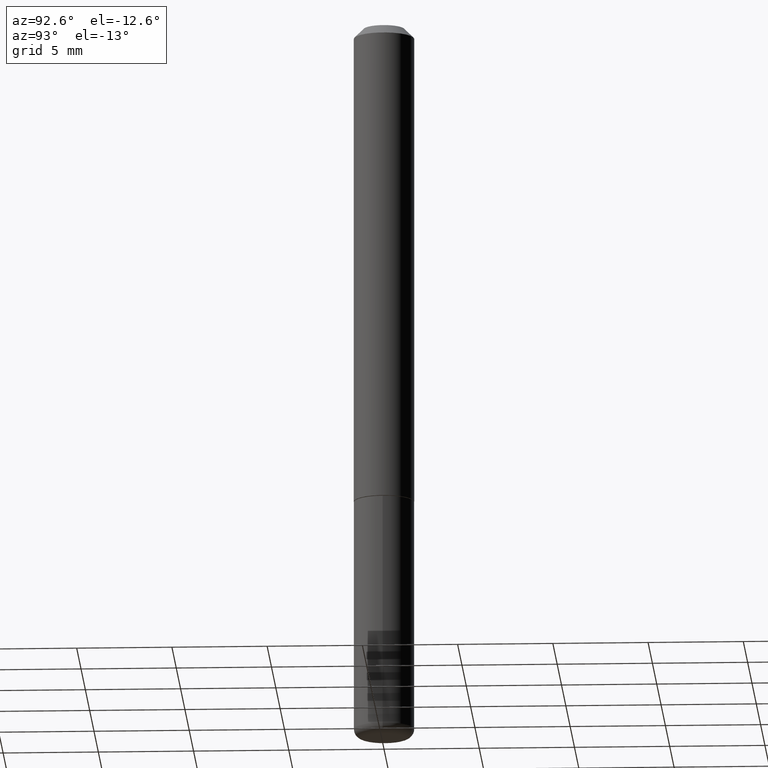
[diagram: clean part render]
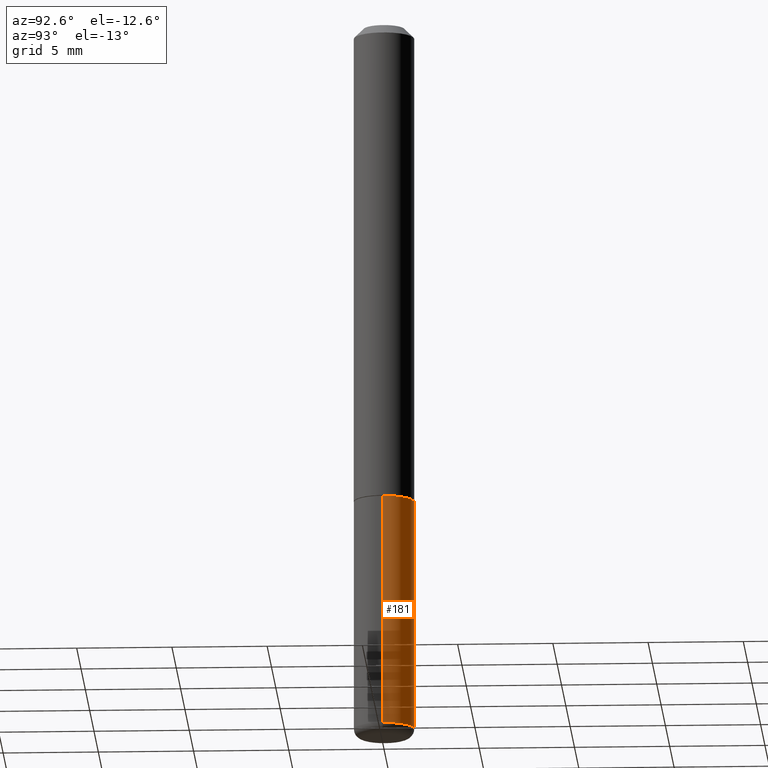
[diagram: same view with one face highlighted and labeled with its STEP entity id]
A machine part, auxiliary view. The second image highlights one B-rep face of the part: STEP entity #181.
In plain terms, the highlighted cylindrical surface (edge-blend (fillet) strip) has radius 1.5875 mm, axis along (-0, 0, 1).
Its self-contained STEP definition (entity closure, byte-faithful):
#5 = CARTESIAN_POINT ( 'NONE',  ( 0.06250000000000001388, -4.364351673553918173E-16, 3.047610484872460571E-30 ) ) ;
#11 = EDGE_LOOP ( 'NONE', ( #392, #325, #314, #395 ) ) ;
#21 = CARTESIAN_POINT ( 'NONE',  ( -0.06250000000000001388, 4.440892098500627148E-16, -3.074334431409317165E-30 ) ) ;
#28 = CARTESIAN_POINT ( 'NONE',  ( -0.06250000000000001388, -4.723303171637793051E-15, -1.479999999999999982 ) ) ;
#49 = CARTESIAN_POINT ( 'NONE',  ( -0.06250000000000001388, -3.885347650315437417E-15, -0.9999999999999996669 ) ) ;
#51 = CIRCLE ( 'NONE', #215, 0.06250000000000001388 ) ;
#63 = DIRECTION ( 'NONE',  ( 1.000000000000000000, -6.982962677686269077E-15, 0.000000000000000000 ) ) ;
#81 = DIRECTION ( 'NONE',  ( -2.445468806185136877E-29, 3.491481338843145188E-15, 1.000000000000000000 ) ) ;
#110 = VERTEX_POINT ( 'NONE', #368 ) ;
#139 = DIRECTION ( 'NONE',  ( 1.000000000000000000, -6.982962677686267499E-15, 4.876176775795935793E-29 ) ) ;
#147 = DIRECTION ( 'NONE',  ( -2.445468806185136597E-29, 3.491481338843145583E-15, 1.000000000000000000 ) ) ;
#156 = EDGE_CURVE ( 'NONE', #290, #362, #251, .T. ) ;
#157 = EDGE_CURVE ( 'NONE', #258, #362, #409, .T. ) ;
#181 = ADVANCED_FACE ( 'NONE', ( #319 ), #355, .T. ) ;
#184 = VECTOR ( 'NONE', #81, 39.37007874015748143 ) ;
#186 = CARTESIAN_POINT ( 'NONE',  ( 0.06250000000000001388, -3.927916506198536858E-15, -0.9999999999999996669 ) ) ;
#215 = AXIS2_PLACEMENT_3D ( 'NONE', #277, #147, #271 ) ;
#229 = EDGE_CURVE ( 'NONE', #110, #290, #296, .T. ) ;
#234 = DIRECTION ( 'NONE',  ( -2.445468806185136597E-29, 3.491481338843145583E-15, 1.000000000000000000 ) ) ;
#251 = CIRCLE ( 'NONE', #414, 0.06250000000000001388 ) ;
#253 = DIRECTION ( 'NONE',  ( -2.445468806185136597E-29, 3.491481338843145583E-15, 1.000000000000000000 ) ) ;
#257 = VECTOR ( 'NONE', #373, 39.37007874015748143 ) ;
#258 = VERTEX_POINT ( 'NONE', #28 ) ;
#262 = CARTESIAN_POINT ( 'NONE',  ( 0.000000000000000000, 0.000000000000000000, 0.000000000000000000 ) ) ;
#271 = DIRECTION ( 'NONE',  ( 1.000000000000000000, -6.982962677686261189E-15, 0.000000000000000000 ) ) ;
#277 = CARTESIAN_POINT ( 'NONE',  ( 3.619293833154002365E-29, -5.167392381487854879E-15, -1.479999999999999982 ) ) ;
#288 = AXIS2_PLACEMENT_3D ( 'NONE', #262, #234, #139 ) ;
#290 = VERTEX_POINT ( 'NONE', #186 ) ;
#296 = LINE ( 'NONE', #5, #184 ) ;
#314 = ORIENTED_EDGE ( 'NONE', *, *, #156, .F. ) ;
#319 = FACE_OUTER_BOUND ( 'NONE', #11, .T. ) ;
#320 = EDGE_CURVE ( 'NONE', #110, #258, #51, .T. ) ;
#325 = ORIENTED_EDGE ( 'NONE', *, *, #157, .T. ) ;
#355 = CYLINDRICAL_SURFACE ( 'NONE', #288, 0.06250000000000001388 ) ;
#362 = VERTEX_POINT ( 'NONE', #49 ) ;
#368 = CARTESIAN_POINT ( 'NONE',  ( 0.06250000000000001388, -5.603827548843246548E-15, -1.479999999999999982 ) ) ;
#369 = CARTESIAN_POINT ( 'NONE',  ( 2.445468806185136036E-29, -3.491481338843144399E-15, -0.9999999999999996669 ) ) ;
#373 = DIRECTION ( 'NONE',  ( -2.445468806185136877E-29, 3.491481338843145188E-15, 1.000000000000000000 ) ) ;
#392 = ORIENTED_EDGE ( 'NONE', *, *, #320, .T. ) ;
#395 = ORIENTED_EDGE ( 'NONE', *, *, #229, .F. ) ;
#409 = LINE ( 'NONE', #21, #257 ) ;
#414 = AXIS2_PLACEMENT_3D ( 'NONE', #369, #253, #63 ) ;